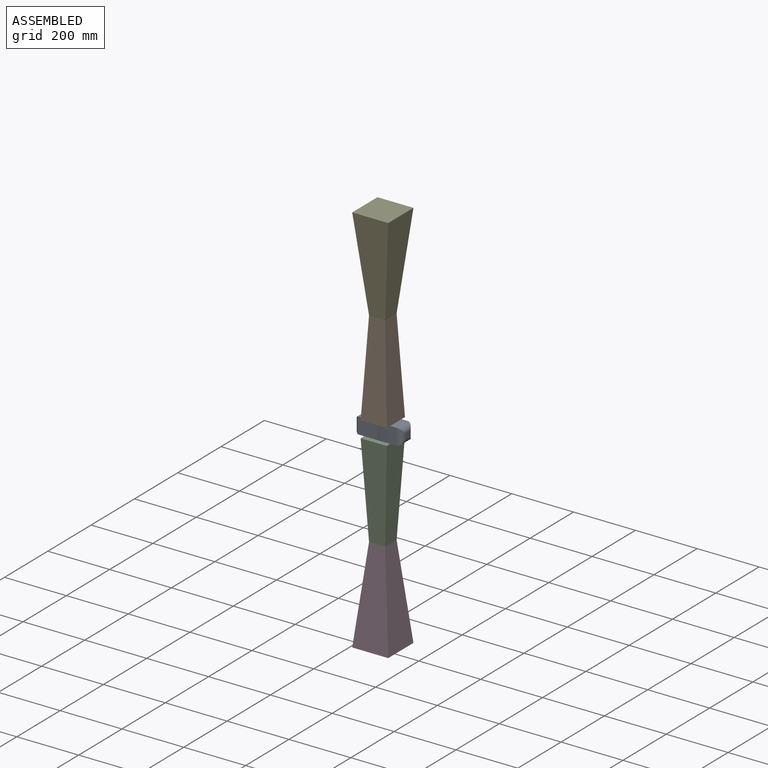
[diagram: assembled view]
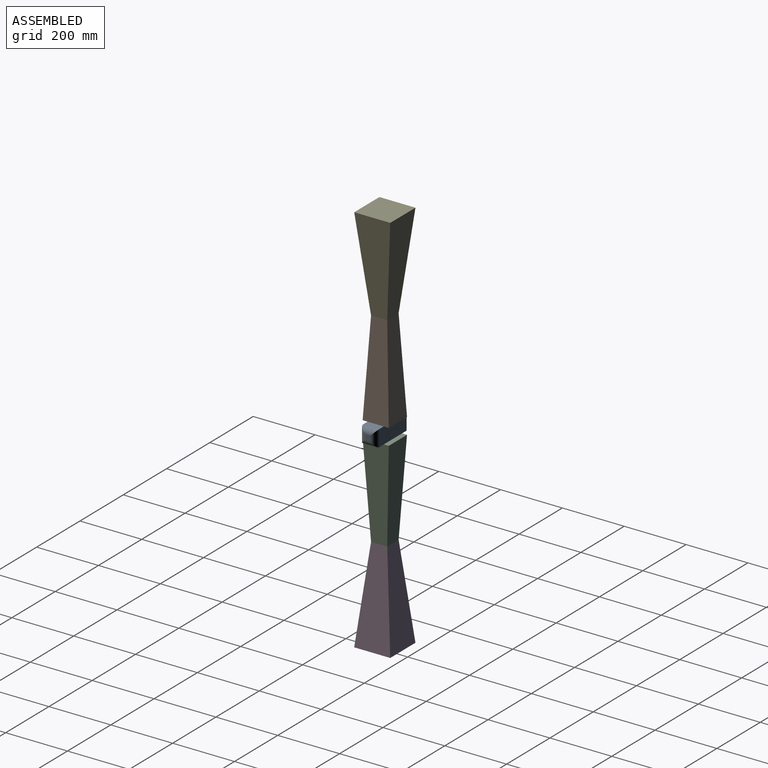
[diagram: assembled view, second angle]
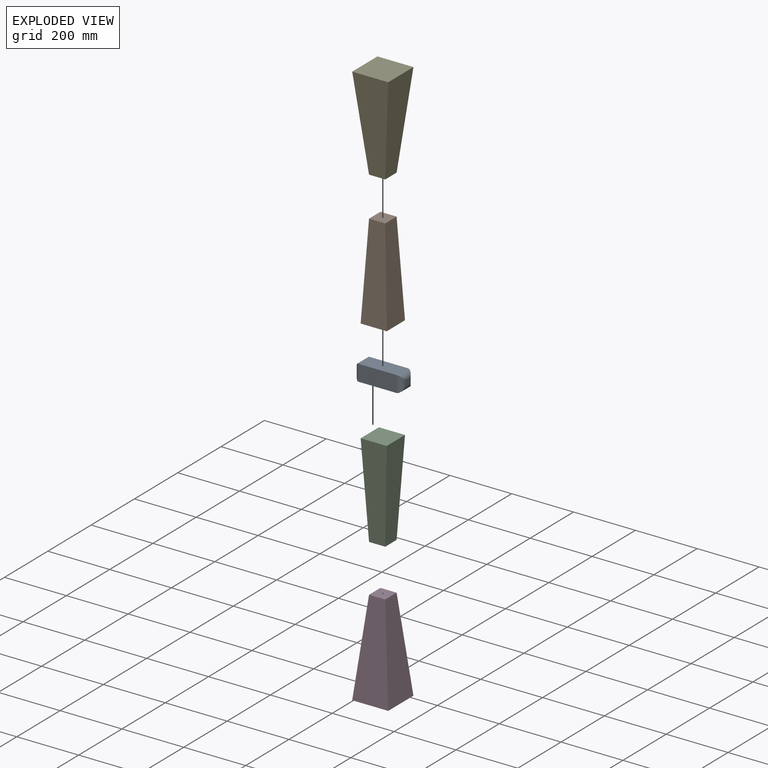
[diagram: exploded view]
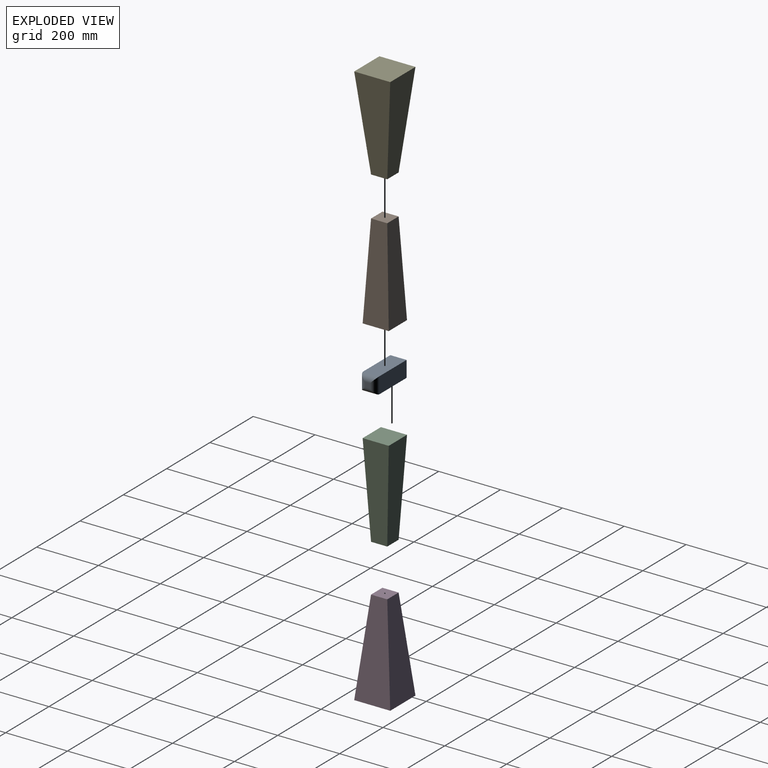
[diagram: exploded view, second angle]
ASSEMBLY  parts=5 mates=4
PART A: 14 faces, bbox 57.7x57.7x152.4 mm
  f0: plane 124.46x52.44mm, normal (-1,0,0), area 6527mm2, adj f1,f3,f9,f10
  f1: plane 124.46x52.44mm, normal (0,-1,0), area 6527mm2, adj f0,f2,f7,f12
  f2: plane 124.46x52.44mm, normal (1,0,0), area 6527mm2, adj f1,f3,f6,f13
  f3: plane 124.46x52.44mm, normal (0,1,0), area 6527mm2, adj f0,f2,f8,f11
  f4: plane 32.12x32.12mm, normal (0,0,1), area 1031.9mm2, adj f6,f7,f8,f9
  f5: plane 16.88x16.88mm, normal (0,0,-1), area 285mm2, adj f10,f11,f12,f13
  f6: bspline ~57.69x10.16mm, area 628.9mm2, adj f2,f4,f7,f8
  f7: bspline ~57.69x10.16mm, area 628.9mm2, adj f1,f4,f6,f9
  f8: bspline ~57.69x10.16mm, area 628.9mm2, adj f3,f4,f6,f9
  f9: bspline ~57.69x10.16mm, area 628.9mm2, adj f0,f4,f7,f8
  f10: cylinder r=17.78mm len=52.44mm, axis (0,-1,0), area 1103.8mm2, adj f0,f5,f11,f12
  f11: cylinder r=17.78mm len=52.44mm, axis (-1,0,0), area 1103.8mm2, adj f3,f5,f10,f13
  f12: cylinder r=17.78mm len=52.44mm, axis (1,0,0), area 1103.8mm2, adj f1,f5,f10,f13
  f13: cylinder r=17.78mm len=52.44mm, axis (0,1,0), area 1103.8mm2, adj f2,f5,f11,f12
PART B: 6 faces, bbox 84.4x84.4x304.8 mm
  f0: plane 304.8x84.39mm, normal (-1,0,-0.05), area 20882mm2, adj f1,f3,f4,f5
  f1: plane 304.8x84.39mm, normal (0,-1,-0.05), area 20882mm2, adj f0,f2,f4,f5
  f2: plane 304.8x84.39mm, normal (1,0,-0.05), area 20882mm2, adj f1,f3,f4,f5
  f3: plane 304.8x84.39mm, normal (0,1,-0.05), area 20882mm2, adj f0,f2,f4,f5
  f4: plane 84.39x84.39mm, normal (0,0,1), area 7121.8mm2, adj f0,f1,f2,f3
  f5: plane 52.44x52.44mm, normal (0,0,-1), area 2750.2mm2, adj f0,f1,f2,f3
PART C: same geometry as B
PART D: 6 faces, bbox 116.5x116.5x304.8 mm
  f0: plane 304.8x116.51mm, normal (-0.99,0,-0.1), area 25890.9mm2, adj f1,f3,f4,f5
  f1: plane 304.8x116.51mm, normal (0,-0.99,-0.1), area 25890.9mm2, adj f0,f2,f4,f5
  f2: plane 304.8x116.51mm, normal (0.99,0,-0.1), area 25890.9mm2, adj f1,f3,f4,f5
  f3: plane 304.8x116.51mm, normal (0,0.99,-0.1), area 25890.9mm2, adj f0,f2,f4,f5
  f4: plane 116.51x116.51mm, normal (0,0,1), area 13575.6mm2, adj f0,f1,f2,f3
  f5: plane 52.44x52.44mm, normal (0,0,-1), area 2750.2mm2, adj f0,f1,f2,f3
PART E: same geometry as D
PLACE A rot(axis=(0.71,0,-0.71),180deg) t=(158.67,-157.33,-252.36)mm
PLACE B rot(axis=(1,0,0),180deg) t=(0,-157.33,0)mm
PLACE C t=(0,0,-662.04)mm
PLACE D rot(axis=(1,0,0),180deg) t=(0,-157.33,-662.04)mm
PLACE E at identity
MATE fastened B.f4 <-> A.f0  axis (0,0,-1) through (78.66,-78.66,-304.8)mm
MATE fastened A.f2 <-> C.f4  axis (0,0,-1) through (78.66,-78.66,-357.24)mm
MATE fastened C.f5 <-> D.f5  axis (0,0,-1) through (78.66,-78.66,-662.04)mm
MATE fastened B.f5 <-> E.f5  axis (0,0,1) through (78.66,-78.66,0)mm
